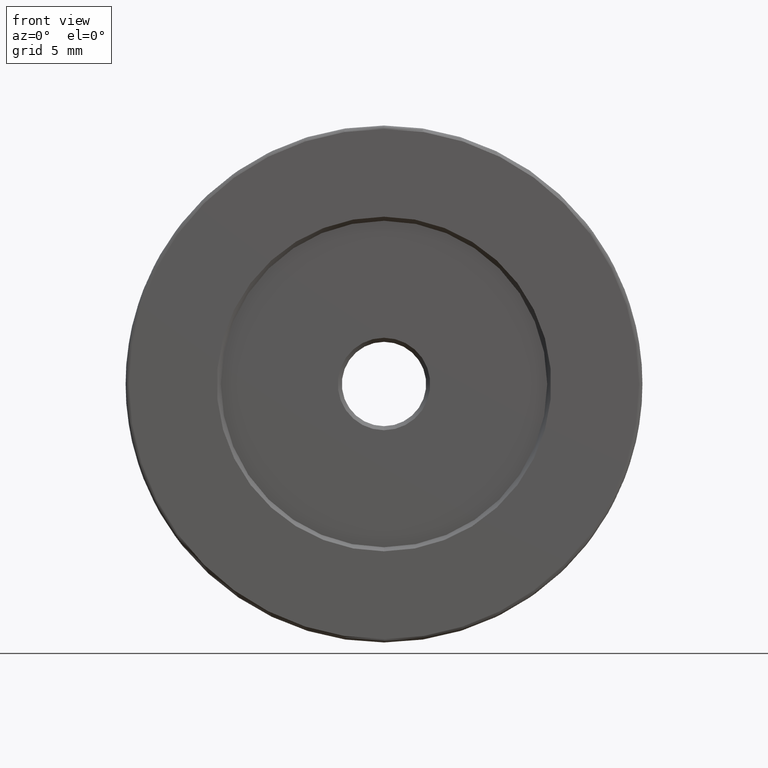
[diagram: clean part render]
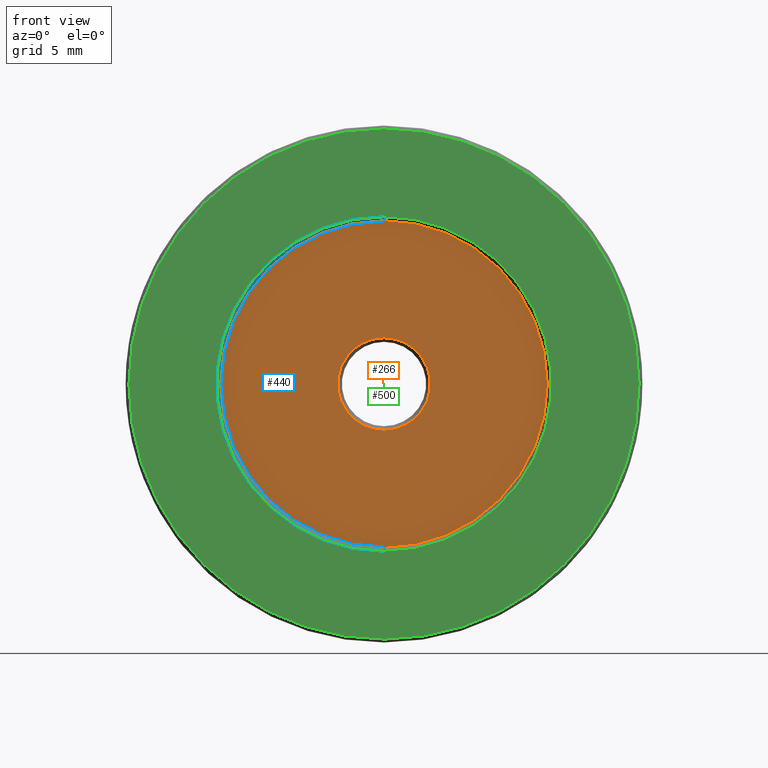
[diagram: same view with three faces highlighted in distinct colors, each labeled with its STEP entity id]
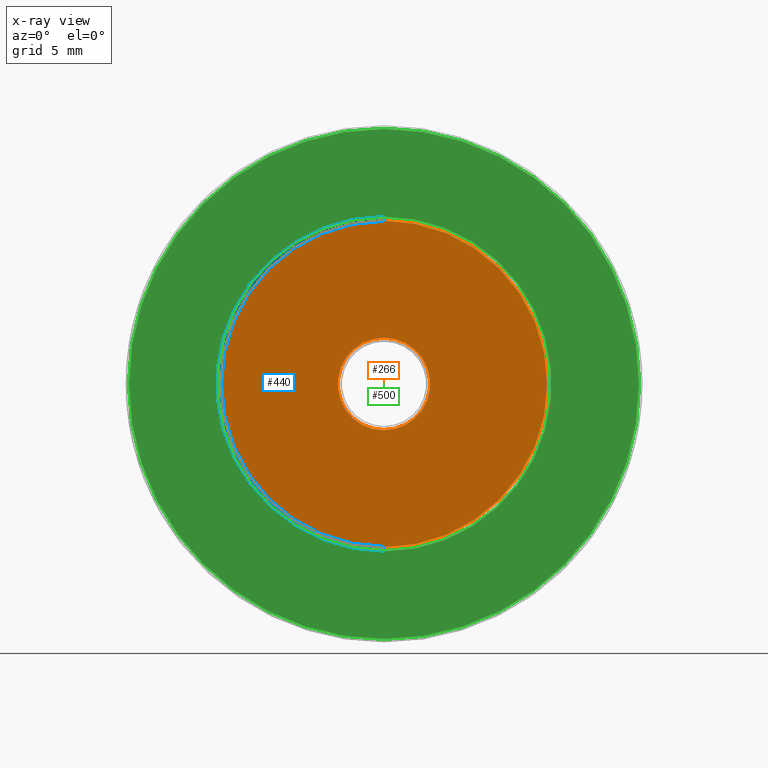
[diagram: x-ray of the same camera — body ghosted, the three highlighted faces saturated]
A machine part, front view with three faces highlighted in distinct colors.
The next image is the same camera in x-ray (body ghosted, the three faces saturated) — at least one of them is partly hidden behind the body in this view.
Their STEP definitions:

[orange] entity #266 — the highlighted planar face has unit normal (0, -1, 0).
#1 = ORIENTED_EDGE ( 'NONE', *, *, #226, .T. ) ;
#3 = EDGE_CURVE ( 'NONE', #402, #351, #409, .T. ) ;
#7 = EDGE_CURVE ( 'NONE', #404, #63, #360, .T. ) ;
#29 = FACE_BOUND ( 'NONE', #392, .T. ) ;
#40 = AXIS2_PLACEMENT_3D ( 'NONE', #494, #153, #121 ) ;
#63 = VERTEX_POINT ( 'NONE', #539 ) ;
#67 = CARTESIAN_POINT ( 'NONE',  ( -7.546808913101048510, -3.593595127302728010, 38.00000000000000000 ) ) ;
#110 = DIRECTION ( 'NONE',  ( 0.000000000000000000, 0.000000000000000000, -1.000000000000000000 ) ) ;
#121 = DIRECTION ( 'NONE',  ( 0.000000000000000000, 0.000000000000000000, 1.000000000000000000 ) ) ;
#122 = CARTESIAN_POINT ( 'NONE',  ( -7.546808913101048510, -3.593595127302728010, 25.99999999999999645 ) ) ;
#123 = DIRECTION ( 'NONE',  ( 0.000000000000000000, -1.000000000000000000, 0.000000000000000000 ) ) ;
#153 = DIRECTION ( 'NONE',  ( -0.000000000000000000, 1.000000000000000000, -0.000000000000000000 ) ) ;
#174 = DIRECTION ( 'NONE',  ( 0.000000000000000000, 0.000000000000000000, 1.000000000000000000 ) ) ;
#220 = CARTESIAN_POINT ( 'NONE',  ( -7.546808913101048510, -3.593595127302728010, 38.00000000000000000 ) ) ;
#226 = EDGE_CURVE ( 'NONE', #63, #404, #416, .T. ) ;
#265 = CARTESIAN_POINT ( 'NONE',  ( -7.546808913101048510, -3.593595127302728010, 38.00000000000000000 ) ) ;
#266 = ADVANCED_FACE ( 'NONE', ( #29, #505 ), #544, .T. ) ;
#274 = EDGE_CURVE ( 'NONE', #351, #402, #556, .T. ) ;
#289 = EDGE_LOOP ( 'NONE', ( #329, #326 ) ) ;
#309 = AXIS2_PLACEMENT_3D ( 'NONE', #356, #353, #174 ) ;
#323 = CARTESIAN_POINT ( 'NONE',  ( -7.546808913101048510, -3.593595127302728010, 41.39999999999999858 ) ) ;
#326 = ORIENTED_EDGE ( 'NONE', *, *, #3, .F. ) ;
#329 = ORIENTED_EDGE ( 'NONE', *, *, #274, .F. ) ;
#342 = DIRECTION ( 'NONE',  ( -0.000000000000000000, 1.000000000000000000, -0.000000000000000000 ) ) ;
#351 = VERTEX_POINT ( 'NONE', #122 ) ;
#353 = DIRECTION ( 'NONE',  ( -0.000000000000000000, 1.000000000000000000, -0.000000000000000000 ) ) ;
#356 = CARTESIAN_POINT ( 'NONE',  ( -7.546808913101048510, -3.593595127302728010, 38.00000000000000000 ) ) ;
#360 = CIRCLE ( 'NONE', #538, 3.400000000000000355 ) ;
#362 = CARTESIAN_POINT ( 'NONE',  ( -7.546808913101046734, -3.593595127302728010, 50.00000000000000000 ) ) ;
#392 = EDGE_LOOP ( 'NONE', ( #1, #531 ) ) ;
#402 = VERTEX_POINT ( 'NONE', #362 ) ;
#404 = VERTEX_POINT ( 'NONE', #323 ) ;
#409 = CIRCLE ( 'NONE', #40, 12.00000000000000355 ) ;
#416 = CIRCLE ( 'NONE', #537, 3.400000000000000355 ) ;
#446 = DIRECTION ( 'NONE',  ( 0.000000000000000000, 0.000000000000000000, -1.000000000000000000 ) ) ;
#463 = DIRECTION ( 'NONE',  ( -0.000000000000000000, 1.000000000000000000, -0.000000000000000000 ) ) ;
#494 = CARTESIAN_POINT ( 'NONE',  ( -7.546808913101048510, -3.593595127302728010, 38.00000000000000000 ) ) ;
#505 = FACE_OUTER_BOUND ( 'NONE', #289, .T. ) ;
#531 = ORIENTED_EDGE ( 'NONE', *, *, #7, .T. ) ;
#537 = AXIS2_PLACEMENT_3D ( 'NONE', #265, #463, #446 ) ;
#538 = AXIS2_PLACEMENT_3D ( 'NONE', #67, #342, #110 ) ;
#539 = CARTESIAN_POINT ( 'NONE',  ( -7.546808913101048510, -3.593595127302728010, 34.60000000000000142 ) ) ;
#544 = PLANE ( 'NONE',  #613 ) ;
#556 = CIRCLE ( 'NONE', #309, 12.00000000000000355 ) ;
#600 = DIRECTION ( 'NONE',  ( 0.000000000000000000, 0.000000000000000000, 1.000000000000000000 ) ) ;
#613 = AXIS2_PLACEMENT_3D ( 'NONE', #220, #123, #600 ) ;

[blue] entity #440 — the highlighted conical surface has half-angle 45 deg.
#31 = VECTOR ( 'NONE', #46, 1000.000000000000000 ) ;
#36 = ORIENTED_EDGE ( 'NONE', *, *, #113, .F. ) ;
#38 = DIRECTION ( 'NONE',  ( 0.000000000000000000, 0.000000000000000000, -1.000000000000000000 ) ) ;
#46 = DIRECTION ( 'NONE',  ( 8.659560562354857670E-17, -0.7071067811865536790, 0.7071067811865414665 ) ) ;
#60 = DIRECTION ( 'NONE',  ( 0.000000000000000000, -0.7071067811865536790, -0.7071067811865414665 ) ) ;
#91 = DIRECTION ( 'NONE',  ( -0.000000000000000000, -1.000000000000000000, -0.000000000000000000 ) ) ;
#93 = ORIENTED_EDGE ( 'NONE', *, *, #169, .F. ) ;
#102 = DIRECTION ( 'NONE',  ( 0.000000000000000000, 1.000000000000000000, 0.000000000000000000 ) ) ;
#107 = DIRECTION ( 'NONE',  ( 0.000000000000000000, 0.000000000000000000, 1.000000000000000000 ) ) ;
#109 = AXIS2_PLACEMENT_3D ( 'NONE', #533, #102, #107 ) ;
#113 = EDGE_CURVE ( 'NONE', #351, #560, #443, .T. ) ;
#122 = CARTESIAN_POINT ( 'NONE',  ( -7.546808913101048510, -3.593595127302728010, 25.99999999999999645 ) ) ;
#131 = CARTESIAN_POINT ( 'NONE',  ( -7.546808913101046734, -3.893595127302727832, 50.29999999999999716 ) ) ;
#134 = AXIS2_PLACEMENT_3D ( 'NONE', #564, #91, #38 ) ;
#169 = EDGE_CURVE ( 'NONE', #560, #377, #188, .T. ) ;
#174 = DIRECTION ( 'NONE',  ( 0.000000000000000000, 0.000000000000000000, 1.000000000000000000 ) ) ;
#188 = CIRCLE ( 'NONE', #109, 12.29999999999999893 ) ;
#274 = EDGE_CURVE ( 'NONE', #351, #402, #556, .T. ) ;
#309 = AXIS2_PLACEMENT_3D ( 'NONE', #356, #353, #174 ) ;
#310 = ORIENTED_EDGE ( 'NONE', *, *, #274, .T. ) ;
#351 = VERTEX_POINT ( 'NONE', #122 ) ;
#353 = DIRECTION ( 'NONE',  ( -0.000000000000000000, 1.000000000000000000, -0.000000000000000000 ) ) ;
#356 = CARTESIAN_POINT ( 'NONE',  ( -7.546808913101048510, -3.593595127302728010, 38.00000000000000000 ) ) ;
#362 = CARTESIAN_POINT ( 'NONE',  ( -7.546808913101046734, -3.593595127302728010, 50.00000000000000000 ) ) ;
#365 = CARTESIAN_POINT ( 'NONE',  ( -7.546808913101046734, -3.893595127302727832, 50.29999999999999716 ) ) ;
#377 = VERTEX_POINT ( 'NONE', #365 ) ;
#402 = VERTEX_POINT ( 'NONE', #362 ) ;
#407 = CONICAL_SURFACE ( 'NONE', #134, 12.29999999999999893, 0.7853981633974396193 ) ;
#440 = ADVANCED_FACE ( 'NONE', ( #605 ), #407, .F. ) ;
#443 = LINE ( 'NONE', #485, #472 ) ;
#465 = EDGE_CURVE ( 'NONE', #402, #377, #473, .T. ) ;
#472 = VECTOR ( 'NONE', #60, 1000.000000000000000 ) ;
#473 = LINE ( 'NONE', #131, #31 ) ;
#485 = CARTESIAN_POINT ( 'NONE',  ( -7.546808913101048510, -3.893595127302727832, 25.69999999999999929 ) ) ;
#533 = CARTESIAN_POINT ( 'NONE',  ( -7.546808913101048510, -3.893595127302727832, 38.00000000000000000 ) ) ;
#535 = CARTESIAN_POINT ( 'NONE',  ( -7.546808913101048510, -3.893595127302727832, 25.69999999999999929 ) ) ;
#542 = ORIENTED_EDGE ( 'NONE', *, *, #465, .T. ) ;
#556 = CIRCLE ( 'NONE', #309, 12.00000000000000355 ) ;
#557 = EDGE_LOOP ( 'NONE', ( #310, #542, #93, #36 ) ) ;
#560 = VERTEX_POINT ( 'NONE', #535 ) ;
#564 = CARTESIAN_POINT ( 'NONE',  ( -7.546808913101048510, -3.893595127302727832, 38.00000000000000000 ) ) ;
#605 = FACE_OUTER_BOUND ( 'NONE', #557, .T. ) ;

[green] entity #500 — the highlighted planar face has unit normal (0, 1, 0).
#37 = PLANE ( 'NONE',  #375 ) ;
#50 = CIRCLE ( 'NONE', #161, 18.74999999999999645 ) ;
#70 = EDGE_LOOP ( 'NONE', ( #486, #397 ) ) ;
#75 = ORIENTED_EDGE ( 'NONE', *, *, #609, .T. ) ;
#89 = CARTESIAN_POINT ( 'NONE',  ( -7.546808913101048510, -3.893595127302727832, 38.00000000000000000 ) ) ;
#102 = DIRECTION ( 'NONE',  ( 0.000000000000000000, 1.000000000000000000, 0.000000000000000000 ) ) ;
#107 = DIRECTION ( 'NONE',  ( 0.000000000000000000, 0.000000000000000000, 1.000000000000000000 ) ) ;
#109 = AXIS2_PLACEMENT_3D ( 'NONE', #533, #102, #107 ) ;
#116 = CARTESIAN_POINT ( 'NONE',  ( -7.546808913101048510, -3.893595127302727832, 38.00000000000000000 ) ) ;
#129 = DIRECTION ( 'NONE',  ( 0.000000000000000000, 1.000000000000000000, 0.000000000000000000 ) ) ;
#161 = AXIS2_PLACEMENT_3D ( 'NONE', #116, #209, #546 ) ;
#168 = DIRECTION ( 'NONE',  ( -0.000000000000000000, -1.000000000000000000, -0.000000000000000000 ) ) ;
#169 = EDGE_CURVE ( 'NONE', #560, #377, #188, .T. ) ;
#171 = CARTESIAN_POINT ( 'NONE',  ( -7.546808913101048510, -3.893595127302727832, 38.00000000000000000 ) ) ;
#188 = CIRCLE ( 'NONE', #109, 12.29999999999999893 ) ;
#209 = DIRECTION ( 'NONE',  ( -0.000000000000000000, -1.000000000000000000, -0.000000000000000000 ) ) ;
#219 = VERTEX_POINT ( 'NONE', #307 ) ;
#284 = ORIENTED_EDGE ( 'NONE', *, *, #169, .T. ) ;
#285 = DIRECTION ( 'NONE',  ( 0.000000000000000000, 1.000000000000000000, 0.000000000000000000 ) ) ;
#307 = CARTESIAN_POINT ( 'NONE',  ( -7.546808913101048510, -3.893595127302727832, 56.74999999999999289 ) ) ;
#313 = DIRECTION ( 'NONE',  ( 0.000000000000000000, 0.000000000000000000, 1.000000000000000000 ) ) ;
#318 = DIRECTION ( 'NONE',  ( 0.000000000000000000, -0.000000000000000000, 1.000000000000000000 ) ) ;
#322 = EDGE_CURVE ( 'NONE', #219, #522, #503, .T. ) ;
#331 = EDGE_CURVE ( 'NONE', #522, #219, #50, .T. ) ;
#365 = CARTESIAN_POINT ( 'NONE',  ( -7.546808913101046734, -3.893595127302727832, 50.29999999999999716 ) ) ;
#375 = AXIS2_PLACEMENT_3D ( 'NONE', #89, #129, #318 ) ;
#377 = VERTEX_POINT ( 'NONE', #365 ) ;
#397 = ORIENTED_EDGE ( 'NONE', *, *, #331, .T. ) ;
#413 = AXIS2_PLACEMENT_3D ( 'NONE', #525, #285, #528 ) ;
#414 = FACE_BOUND ( 'NONE', #430, .T. ) ;
#430 = EDGE_LOOP ( 'NONE', ( #284, #75 ) ) ;
#467 = FACE_OUTER_BOUND ( 'NONE', #70, .T. ) ;
#486 = ORIENTED_EDGE ( 'NONE', *, *, #322, .T. ) ;
#500 = ADVANCED_FACE ( 'NONE', ( #467, #414 ), #37, .F. ) ;
#501 = CIRCLE ( 'NONE', #413, 12.29999999999999893 ) ;
#503 = CIRCLE ( 'NONE', #549, 18.74999999999999645 ) ;
#522 = VERTEX_POINT ( 'NONE', #532 ) ;
#525 = CARTESIAN_POINT ( 'NONE',  ( -7.546808913101048510, -3.893595127302727832, 38.00000000000000000 ) ) ;
#528 = DIRECTION ( 'NONE',  ( 0.000000000000000000, 0.000000000000000000, 1.000000000000000000 ) ) ;
#532 = CARTESIAN_POINT ( 'NONE',  ( -7.546808913101045846, -3.893595127302727832, 19.25000000000000000 ) ) ;
#533 = CARTESIAN_POINT ( 'NONE',  ( -7.546808913101048510, -3.893595127302727832, 38.00000000000000000 ) ) ;
#535 = CARTESIAN_POINT ( 'NONE',  ( -7.546808913101048510, -3.893595127302727832, 25.69999999999999929 ) ) ;
#546 = DIRECTION ( 'NONE',  ( 0.000000000000000000, 0.000000000000000000, 1.000000000000000000 ) ) ;
#549 = AXIS2_PLACEMENT_3D ( 'NONE', #171, #168, #313 ) ;
#560 = VERTEX_POINT ( 'NONE', #535 ) ;
#609 = EDGE_CURVE ( 'NONE', #377, #560, #501, .T. ) ;